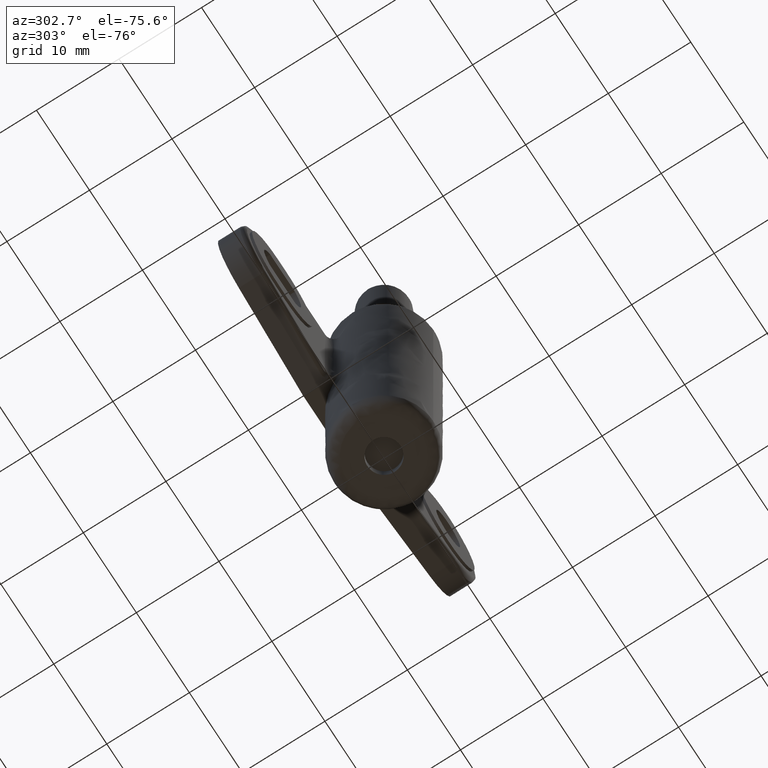
[diagram: clean part render]
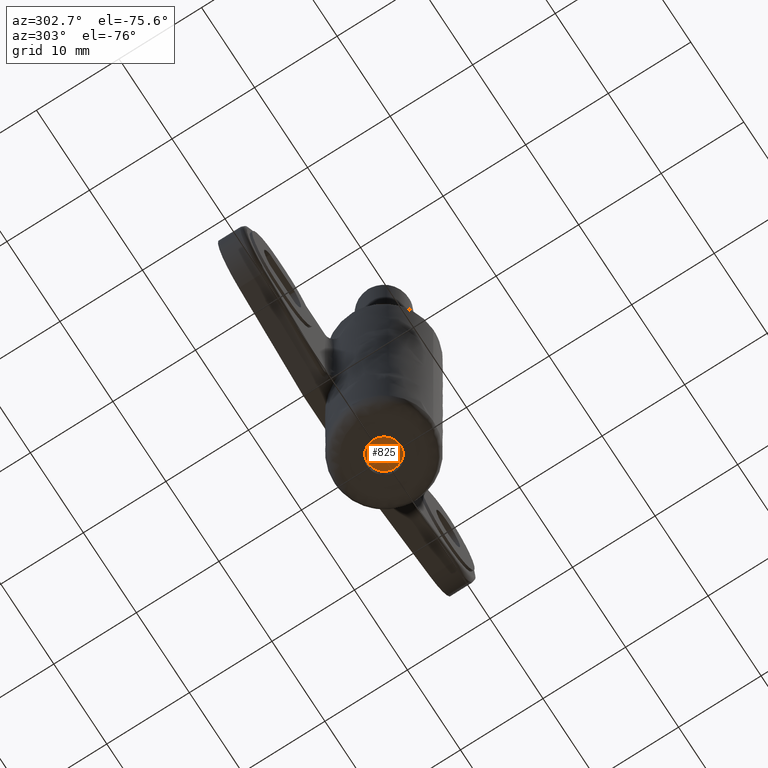
[diagram: same view with one face highlighted and labeled with its STEP entity id]
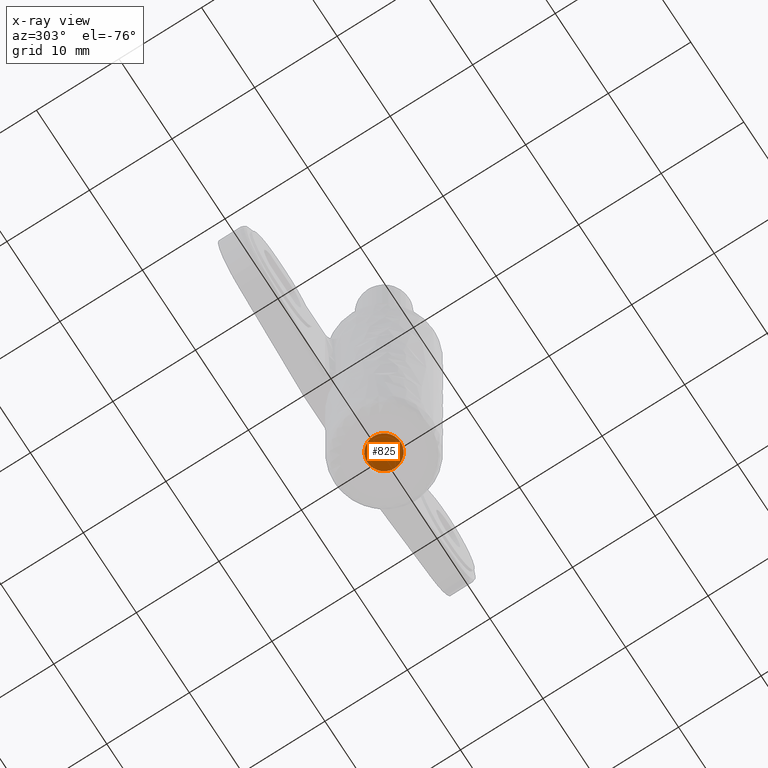
[diagram: x-ray of the same camera — body ghosted, the highlighted face saturated]
A machine part, auxiliary view. The second image highlights one B-rep face of the part: STEP entity #825.
The next image is the same camera in x-ray: the body ghosted, the highlighted face saturated — about 0% of this face is hidden behind the body in this view.
In plain terms, the highlighted face is a freeform B-spline surface patch.
Its self-contained STEP definition (entity closure, byte-faithful):
#754=CARTESIAN_POINT('',(-2.199799992247224,-2.199750737069087,-37.500000000000000));
#755=CARTESIAN_POINT('',(2.199800099535584,-2.199750737069087,-37.500000000000000));
#756=CARTESIAN_POINT('',(-2.199799992247224,2.199750701306300,-37.500000000000000));
#757=CARTESIAN_POINT('',(2.199800099535584,2.199750701306300,-37.500000000000000));
#758=B_SPLINE_SURFACE_WITH_KNOTS('',1,1,((#754,#756),(#755,#757)),.UNSPECIFIED.,.F.,.F.,.U.,(2,2),(2,2),(0.0,4.399600091782808),(0.0,4.399501438375387),.UNSPECIFIED.);
#759=CARTESIAN_POINT('',(2.0,0.0,-37.500000000000000));
#760=VERTEX_POINT('',#759);
#761=CARTESIAN_POINT('',(0.122097079163100,-1.996269596838022,-37.500000000000000));
#762=VERTEX_POINT('',#761);
#763=CARTESIAN_POINT('',(2.0,0.0,-37.500000000000000));
#764=CARTESIAN_POINT('',(2.0,-1.881412133723212,-37.499999999999993));
#765=CARTESIAN_POINT('',(0.122097079163100,-1.996269596838022,-37.500000000000007));
#773=(BOUNDED_CURVE()B_SPLINE_CURVE(2,(#763,#764,#765),.UNSPECIFIED.,.F.,.U.)B_SPLINE_CURVE_WITH_KNOTS((3,3),(0.0,0.239332962233897),.UNSPECIFIED.)CURVE()GEOMETRIC_REPRESENTATION_ITEM()RATIONAL_B_SPLINE_CURVE((1.0,0.719603993292622,0.976072041655902))REPRESENTATION_ITEM(''));
#774=EDGE_CURVE('',#760,#762,#773,.T.);
#775=ORIENTED_EDGE('',*,*,#774,.T.);
#776=CARTESIAN_POINT('',(-2.0,0.0,-37.500000000000000));
#777=VERTEX_POINT('',#776);
#778=CARTESIAN_POINT('',(0.122097079163100,-1.996269596838022,-37.500000000000007));
#779=CARTESIAN_POINT('',(0.061105526644002,-2.000000000000000,-37.500000000000000));
#780=CARTESIAN_POINT('',(0.0,-2.0,-37.500000000000000));
#781=CARTESIAN_POINT('',(-2.000000000000000,-2.000000000000000,-37.499999999999993));
#782=CARTESIAN_POINT('',(-2.0,0.0,-37.500000000000000));
#790=(BOUNDED_CURVE()B_SPLINE_CURVE(2,(#778,#779,#780,#781,#782),.UNSPECIFIED.,.F.,.U.)B_SPLINE_CURVE_WITH_KNOTS((3,2,3),(0.239332962233897,0.250000000000000,0.500000000000000),.UNSPECIFIED.)CURVE()GEOMETRIC_REPRESENTATION_ITEM()RATIONAL_B_SPLINE_CURVE((0.976072041655902,0.987502787893925,1.0,0.707106781186548,1.0))REPRESENTATION_ITEM(''));
#791=EDGE_CURVE('',#762,#777,#790,.T.);
#792=ORIENTED_EDGE('',*,*,#791,.T.);
#793=CARTESIAN_POINT('',(-0.122097079163100,1.996269596838022,-37.500000000000000));
#794=VERTEX_POINT('',#793);
#795=CARTESIAN_POINT('',(-2.0,0.0,-37.500000000000000));
#796=CARTESIAN_POINT('',(-2.000000000000000,1.881412133723212,-37.500000000000000));
#797=CARTESIAN_POINT('',(-0.122097079163099,1.996269596838022,-37.500000000000000));
#805=(BOUNDED_CURVE()B_SPLINE_CURVE(2,(#795,#796,#797),.UNSPECIFIED.,.F.,.U.)B_SPLINE_CURVE_WITH_KNOTS((3,3),(0.500000000000000,0.739332962233897),.UNSPECIFIED.)CURVE()GEOMETRIC_REPRESENTATION_ITEM()RATIONAL_B_SPLINE_CURVE((1.0,0.719603993292622,0.976072041655903))REPRESENTATION_ITEM(''));
#806=EDGE_CURVE('',#777,#794,#805,.T.);
#807=ORIENTED_EDGE('',*,*,#806,.T.);
#808=CARTESIAN_POINT('',(-0.122097079163099,1.996269596838022,-37.500000000000000));
#809=CARTESIAN_POINT('',(-0.061105526644002,2.000000000000000,-37.500000000000007));
#810=CARTESIAN_POINT('',(0.0,2.0,-37.500000000000000));
#811=CARTESIAN_POINT('',(2.000000000000000,2.000000000000000,-37.499999999999993));
#812=CARTESIAN_POINT('',(2.0,0.0,-37.500000000000000));
#820=(BOUNDED_CURVE()B_SPLINE_CURVE(2,(#808,#809,#810,#811,#812),.UNSPECIFIED.,.F.,.U.)B_SPLINE_CURVE_WITH_KNOTS((3,2,3),(0.739332962233897,0.750000000000000,1.0),.UNSPECIFIED.)CURVE()GEOMETRIC_REPRESENTATION_ITEM()RATIONAL_B_SPLINE_CURVE((0.976072041655903,0.987502787893925,1.0,0.707106781186548,1.0))REPRESENTATION_ITEM(''));
#821=EDGE_CURVE('',#794,#760,#820,.T.);
#822=ORIENTED_EDGE('',*,*,#821,.T.);
#823=EDGE_LOOP('',(#775,#792,#807,#822));
#824=FACE_OUTER_BOUND('',#823,.T.);
#825=ADVANCED_FACE('',(#824),#758,.F.);